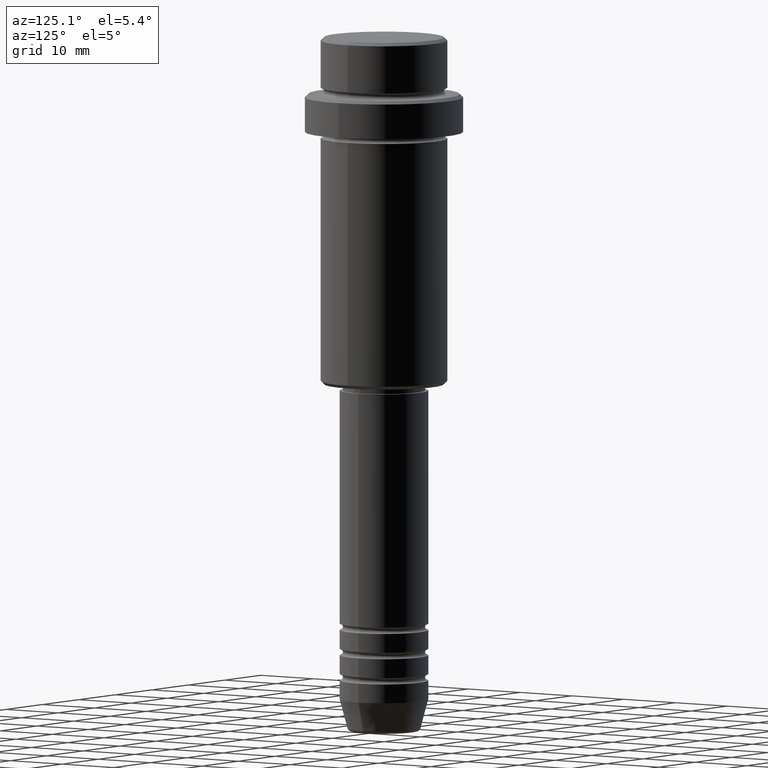
[diagram: clean part render]
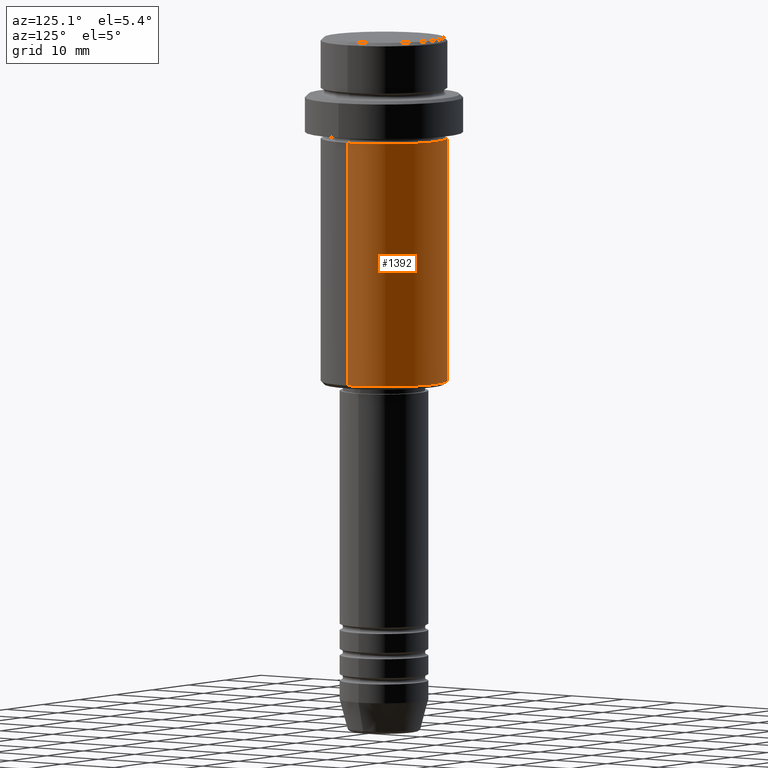
[diagram: same view with one face highlighted and labeled with its STEP entity id]
A machine part, auxiliary view. The second image highlights one B-rep face of the part: STEP entity #1392.
In plain terms, the highlighted cylindrical surface (partial cylindrical patch) has radius 10 mm, axis along (-0, -0, 1).
Its self-contained STEP definition (entity closure, byte-faithful):
#7 = EDGE_CURVE ( 'NONE', #194, #1133, #549, .T. ) ;
#10 = EDGE_LOOP ( 'NONE', ( #325, #690, #736, #1259 ) ) ;
#112 = VERTEX_POINT ( 'NONE', #781 ) ;
#194 = VERTEX_POINT ( 'NONE', #1268 ) ;
#213 = VERTEX_POINT ( 'NONE', #714 ) ;
#240 = CARTESIAN_POINT ( 'NONE',  ( 0.000000000000000000, 0.000000000000000000, 0.000000000000000000 ) ) ;
#325 = ORIENTED_EDGE ( 'NONE', *, *, #969, .T. ) ;
#358 = DIRECTION ( 'NONE',  ( -0.000000000000000000, -0.000000000000000000, 1.000000000000000000 ) ) ;
#366 = AXIS2_PLACEMENT_3D ( 'NONE', #240, #1132, #916 ) ;
#378 = CARTESIAN_POINT ( 'NONE',  ( 0.000000000000000000, 0.000000000000000000, -54.50000000000000711 ) ) ;
#434 = DIRECTION ( 'NONE',  ( -0.000000000000000000, -0.000000000000000000, 1.000000000000000000 ) ) ;
#458 = CARTESIAN_POINT ( 'NONE',  ( -10.00000000000000000, 1.224646799147353256E-15, 0.000000000000000000 ) ) ;
#538 = CIRCLE ( 'NONE', #670, 10.00000000000000000 ) ;
#549 = LINE ( 'NONE', #458, #1243 ) ;
#583 = EDGE_CURVE ( 'NONE', #112, #1133, #538, .T. ) ;
#670 = AXIS2_PLACEMENT_3D ( 'NONE', #1153, #796, #1362 ) ;
#690 = ORIENTED_EDGE ( 'NONE', *, *, #7, .T. ) ;
#714 = CARTESIAN_POINT ( 'NONE',  ( 10.00000000000000000, 0.000000000000000000, -54.50000000000000711 ) ) ;
#724 = CARTESIAN_POINT ( 'NONE',  ( -10.00000000000000000, 1.224646799147353256E-15, -16.00000000000000000 ) ) ;
#736 = ORIENTED_EDGE ( 'NONE', *, *, #583, .F. ) ;
#781 = CARTESIAN_POINT ( 'NONE',  ( 10.00000000000000000, 0.000000000000000000, -16.00000000000000000 ) ) ;
#796 = DIRECTION ( 'NONE',  ( -0.000000000000000000, -0.000000000000000000, 1.000000000000000000 ) ) ;
#799 = CYLINDRICAL_SURFACE ( 'NONE', #366, 10.00000000000000000 ) ;
#805 = DIRECTION ( 'NONE',  ( -1.000000000000000000, 0.000000000000000000, 0.000000000000000000 ) ) ;
#829 = EDGE_CURVE ( 'NONE', #213, #112, #1209, .T. ) ;
#916 = DIRECTION ( 'NONE',  ( 1.000000000000000000, 0.000000000000000000, 0.000000000000000000 ) ) ;
#969 = EDGE_CURVE ( 'NONE', #213, #194, #1298, .T. ) ;
#1121 = DIRECTION ( 'NONE',  ( -0.000000000000000000, -0.000000000000000000, 1.000000000000000000 ) ) ;
#1132 = DIRECTION ( 'NONE',  ( -0.000000000000000000, -0.000000000000000000, 1.000000000000000000 ) ) ;
#1133 = VERTEX_POINT ( 'NONE', #724 ) ;
#1139 = AXIS2_PLACEMENT_3D ( 'NONE', #378, #358, #805 ) ;
#1142 = FACE_OUTER_BOUND ( 'NONE', #10, .T. ) ;
#1153 = CARTESIAN_POINT ( 'NONE',  ( 0.000000000000000000, 0.000000000000000000, -16.00000000000000000 ) ) ;
#1197 = CARTESIAN_POINT ( 'NONE',  ( 10.00000000000000000, 0.000000000000000000, 0.000000000000000000 ) ) ;
#1209 = LINE ( 'NONE', #1197, #1389 ) ;
#1243 = VECTOR ( 'NONE', #1121, 1000.000000000000000 ) ;
#1259 = ORIENTED_EDGE ( 'NONE', *, *, #829, .F. ) ;
#1268 = CARTESIAN_POINT ( 'NONE',  ( -10.00000000000000000, 1.224646799147353256E-15, -54.50000000000000711 ) ) ;
#1298 = CIRCLE ( 'NONE', #1139, 10.00000000000000000 ) ;
#1362 = DIRECTION ( 'NONE',  ( 1.000000000000000000, 0.000000000000000000, 0.000000000000000000 ) ) ;
#1389 = VECTOR ( 'NONE', #434, 1000.000000000000000 ) ;
#1392 = ADVANCED_FACE ( 'NONE', ( #1142 ), #799, .T. ) ;